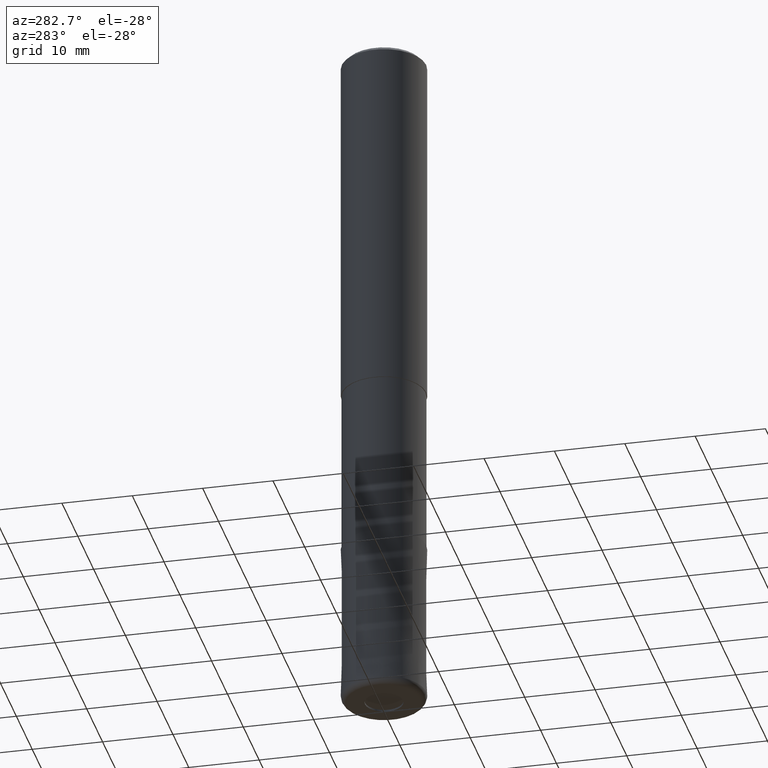
[diagram: clean part render]
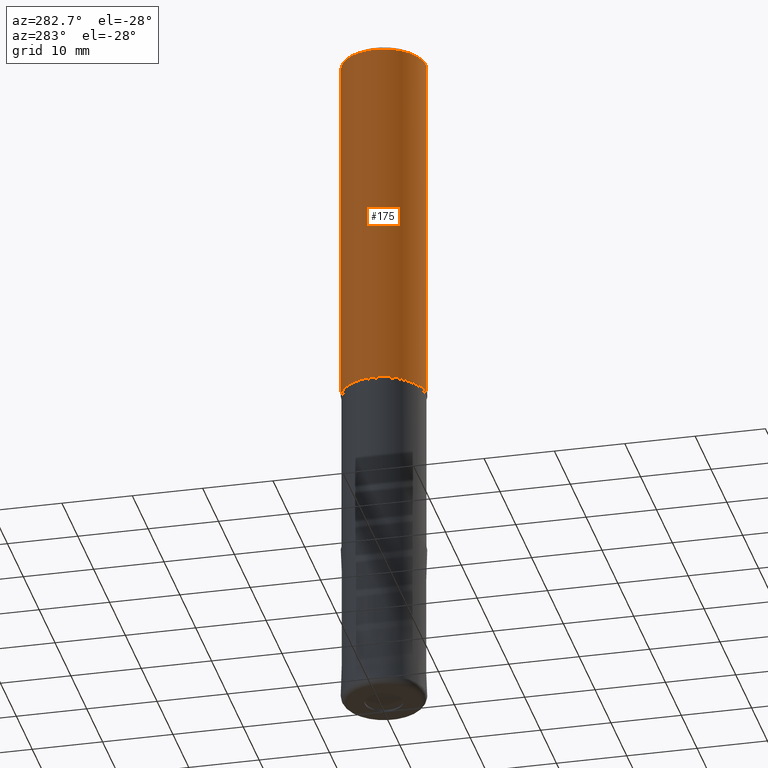
[diagram: same view with one face highlighted and labeled with its STEP entity id]
A machine part, auxiliary view. The second image highlights one B-rep face of the part: STEP entity #175.
In plain terms, the highlighted cylindrical surface (partial cylindrical patch) has radius 6 mm, axis along (-0, -0, 1).
Its self-contained STEP definition (entity closure, byte-faithful):
#139=VERTEX_POINT('',#327);
#147=VERTEX_POINT('',#337);
#151=EDGE_CURVE('',#139,#147,#341,.T.);
#159=VERTEX_POINT('',#350);
#175=ADVANCED_FACE('',(#368),#369,.T.);
#185=EDGE_CURVE('',#159,#147,#382,.T.);
#191=EDGE_CURVE('',#159,#251,#388,.T.);
#211=EDGE_CURVE('',#251,#139,#412,.T.);
#251=VERTEX_POINT('',#458);
#327=CARTESIAN_POINT('',(0.0,6.0,-0.600000000000001));
#337=CARTESIAN_POINT('',(0.0,6.0,-52.0));
#341=LINE('',#556,#557);
#350=CARTESIAN_POINT('',(7.34763812293426E-016,-6.0,-52.0));
#368=FACE_OUTER_BOUND('',#588,.T.);
#369=CYLINDRICAL_SURFACE('',#589,6.0);
#382=CIRCLE('',#603,6.0);
#388=LINE('',#610,#611);
#412=CIRCLE('',#639,6.0);
#458=CARTESIAN_POINT('',(7.34763812293426E-016,-6.0,-0.600000000000001));
#556=CARTESIAN_POINT('',(-7.34763812293426E-016,6.0,-26.3));
#557=VECTOR('',#786,1.0);
#588=EDGE_LOOP('',(#817,#818,#819,#820));
#589=AXIS2_PLACEMENT_3D('',#821,#822,#823);
#603=AXIS2_PLACEMENT_3D('',#840,#841,#842);
#610=CARTESIAN_POINT('',(7.34763812293426E-016,-6.0,-26.3));
#611=VECTOR('',#843,1.0);
#639=AXIS2_PLACEMENT_3D('',#877,#878,#879);
#786=DIRECTION('',(0.0,0.0,-1.0));
#817=ORIENTED_EDGE('',*,*,#151,.T.);
#818=ORIENTED_EDGE('',*,*,#185,.F.);
#819=ORIENTED_EDGE('',*,*,#191,.T.);
#820=ORIENTED_EDGE('',*,*,#211,.T.);
#821=CARTESIAN_POINT('',(0.0,0.0,-26.3));
#822=DIRECTION('',(-0.0,-0.0,1.0));
#823=DIRECTION('',(0.0,1.0,0.0));
#840=CARTESIAN_POINT('',(0.0,0.0,-52.0));
#841=DIRECTION('',(0.0,0.0,-1.0));
#842=DIRECTION('',(0.0,1.0,0.0));
#843=DIRECTION('',(-0.0,-0.0,1.0));
#877=CARTESIAN_POINT('',(0.0,0.0,-0.600000000000001));
#878=DIRECTION('',(0.0,0.0,-1.0));
#879=DIRECTION('',(0.0,1.0,0.0));